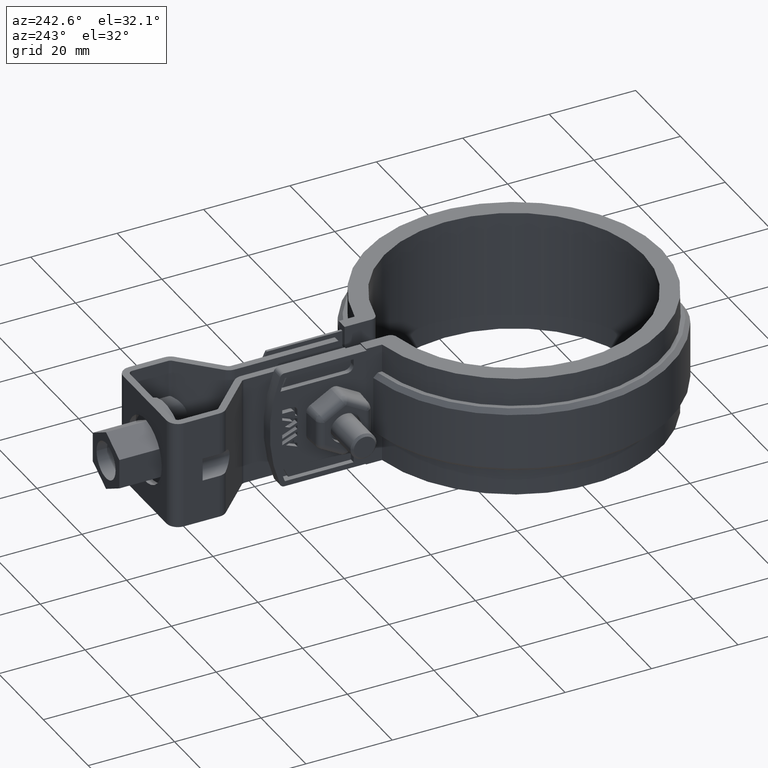
[diagram: clean part render]
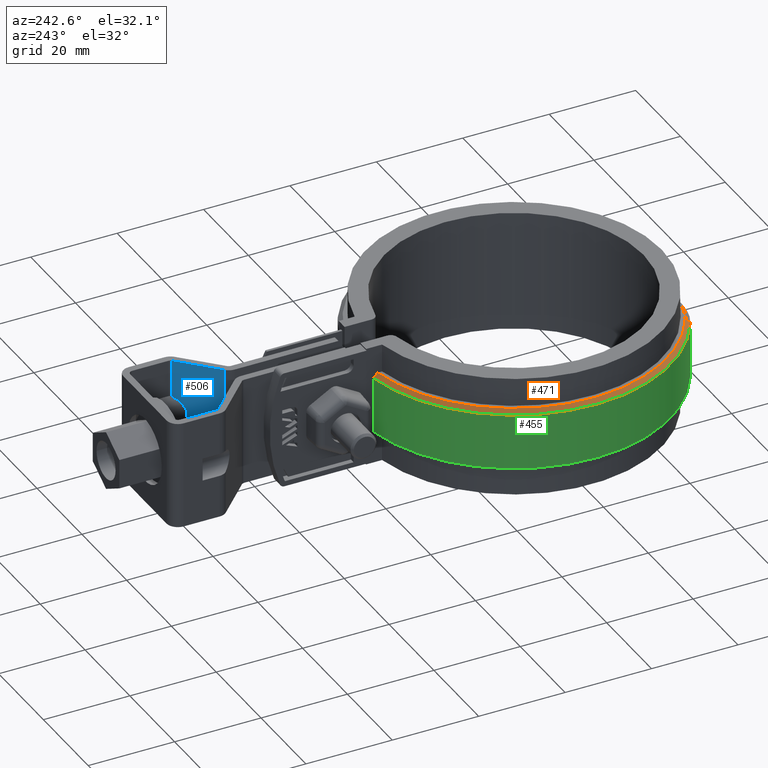
[diagram: same view with three faces highlighted in distinct colors, each labeled with its STEP entity id]
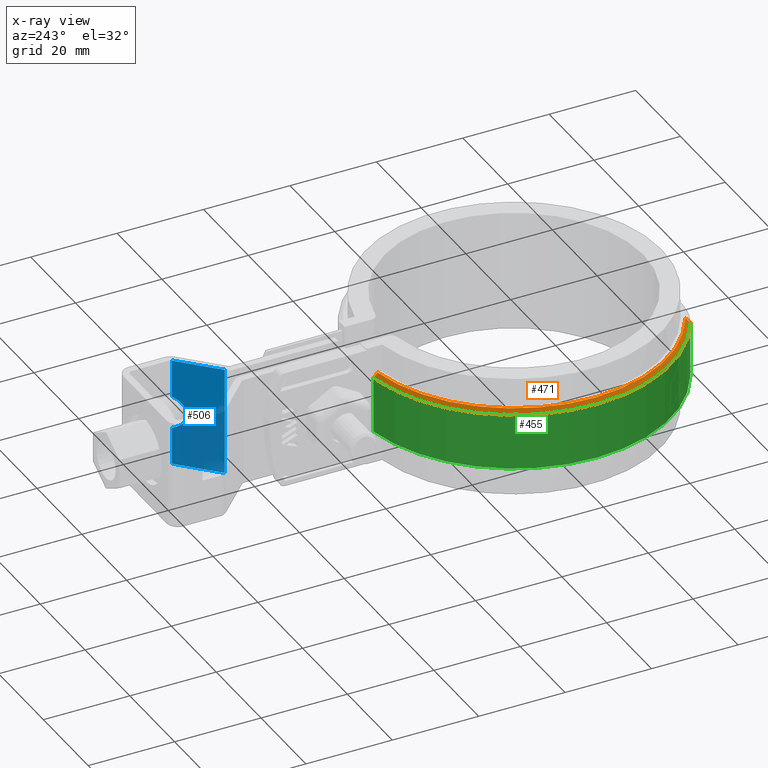
[diagram: x-ray of the same camera — body ghosted, the three highlighted faces saturated]
A machine part, auxiliary view with three faces highlighted in distinct colors.
The next image is the same camera in x-ray (body ghosted, the three faces saturated) — at least one of them is partly hidden behind the body in this view.
Their STEP definitions:

[orange] entity #471 — the highlighted conical surface has half-angle 45 deg.
#471 = ADVANCED_FACE( '', ( #935 ), #936, .T. );
#935 = FACE_OUTER_BOUND( '', #2015, .T. );
#936 = CONICAL_SURFACE( '', #2016, 35.2450000000000, 0.785398163397450 );
#2015 = EDGE_LOOP( '', ( #4493, #4494, #4495, #4496 ) );
#2016 = AXIS2_PLACEMENT_3D( '', #4497, #4498, #4499 );
#4493 = ORIENTED_EDGE( '', *, *, #6737, .F. );
#4494 = ORIENTED_EDGE( '', *, *, #6912, .F. );
#4495 = ORIENTED_EDGE( '', *, *, #6933, .F. );
#4496 = ORIENTED_EDGE( '', *, *, #6935, .F. );
#4497 = CARTESIAN_POINT( '', ( 8.67361737988404E-016, 0.000000000000000, -5.00000000000000 ) );
#4498 = DIRECTION( '', ( 0.000000000000000, 0.000000000000000, -1.00000000000000 ) );
#4499 = DIRECTION( '', ( -1.00000000000000, 0.000000000000000, 0.000000000000000 ) );
#6737 = EDGE_CURVE( '', #7781, #7783, #7784, .T. );
#6912 = EDGE_CURVE( '', #8083, #7781, #8085, .T. );
#6933 = EDGE_CURVE( '', #8111, #8083, #8112, .T. );
#6935 = EDGE_CURVE( '', #7783, #8111, #8114, .F. );
#7781 = VERTEX_POINT( '', #10363 );
#7783 = VERTEX_POINT( '', #10366 );
#7784 = B_SPLINE_CURVE_WITH_KNOTS( '', 3, ( #10367, #10368, #10369, #10370 ), .UNSPECIFIED., .F., .F., ( 4, 4 ), ( 9.81307786677359E-018, 0.00142478149816513 ), .UNSPECIFIED. );
#8083 = VERTEX_POINT( '', #11698 );
#8085 = CIRCLE( '', #11701, 36.2450000000000 );
#8111 = VERTEX_POINT( '', #11740 );
#8112 = LINE( '', #11741, #11742 );
#8114 = CIRCLE( '', #11744, 35.2450000000000 );
#10363 = CARTESIAN_POINT( '', ( -6.09999999999999, 35.7280005737797, -6.00000000000000 ) );
#10366 = CARTESIAN_POINT( '', ( -6.09999999999999, 34.7131102755141, -5.00000000000000 ) );
#10367 = CARTESIAN_POINT( '', ( -6.09999999999999, 35.7280005737797, -6.00000000000000 ) );
#10368 = CARTESIAN_POINT( '', ( -6.09999999999999, 35.3897727736946, -5.66659668821881 ) );
#10369 = CARTESIAN_POINT( '', ( -6.09999999999999, 35.0514779785923, -5.33326132474473 ) );
#10370 = CARTESIAN_POINT( '', ( -6.09999999999999, 34.7131102755141, -5.00000000000000 ) );
#11698 = CARTESIAN_POINT( '', ( -17.0871064701963, -31.9645243586726, -6.00000000000000 ) );
#11701 = AXIS2_PLACEMENT_3D( '', #13653, #13654, #13655 );
#11740 = CARTESIAN_POINT( '', ( -16.6156729905385, -31.0826227347611, -5.00000000000000 ) );
#11741 = CARTESIAN_POINT( '', ( -16.6156729905385, -31.0826227347611, -5.00000000000000 ) );
#11742 = VECTOR( '', #13690, 1000.00000000000 );
#11744 = AXIS2_PLACEMENT_3D( '', #13694, #13695, #13696 );
#13653 = CARTESIAN_POINT( '', ( 8.67361737988404E-016, 0.000000000000000, -6.00000000000000 ) );
#13654 = DIRECTION( '', ( 0.000000000000000, 0.000000000000000, -1.00000000000000 ) );
#13655 = DIRECTION( '', ( -1.00000000000000, 0.000000000000000, 0.000000000000000 ) );
#13690 = DIRECTION( '', ( -0.333353810344388, -0.623598618607257, -0.707106781186546 ) );
#13694 = CARTESIAN_POINT( '', ( 8.67361737988404E-016, 0.000000000000000, -5.00000000000000 ) );
#13695 = DIRECTION( '', ( 0.000000000000000, 0.000000000000000, -1.00000000000000 ) );
#13696 = DIRECTION( '', ( -1.00000000000000, 0.000000000000000, 0.000000000000000 ) );

[blue] entity #506 — the highlighted planar face has unit normal (-0.6983, 0.7158, -0).
#506 = ADVANCED_FACE( '', ( #1007 ), #1008, .T. );
#1007 = FACE_OUTER_BOUND( '', #2265, .T. );
#1008 = PLANE( '', #2266 );
#2265 = EDGE_LOOP( '', ( #4946, #4947, #4948, #4949, #4950, #4951 ) );
#2266 = AXIS2_PLACEMENT_3D( '', #4952, #4953, #4954 );
#4946 = ORIENTED_EDGE( '', *, *, #6960, .F. );
#4947 = ORIENTED_EDGE( '', *, *, #7013, .T. );
#4948 = ORIENTED_EDGE( '', *, *, #6996, .T. );
#4949 = ORIENTED_EDGE( '', *, *, #7012, .T. );
#4950 = ORIENTED_EDGE( '', *, *, #7014, .T. );
#4951 = ORIENTED_EDGE( '', *, *, #7015, .F. );
#4952 = CARTESIAN_POINT( '', ( 10.3483238354871, 73.7815349866463, -8.22131251965175E-009 ) );
#4953 = DIRECTION( '', ( -0.698323835530563, 0.715781964518444, -4.53049167009169E-011 ) );
#4954 = DIRECTION( '', ( 0.715781964518444, 0.698323835530563, -4.47500647805803E-011 ) );
#6960 = EDGE_CURVE( '', #8149, #8151, #8152, .T. );
#6996 = EDGE_CURVE( '', #8220, #8217, #8221, .T. );
#7012 = EDGE_CURVE( '', #8217, #8242, #8244, .T. );
#7013 = EDGE_CURVE( '', #8149, #8220, #8245, .T. );
#7014 = EDGE_CURVE( '', #8242, #8246, #8247, .T. );
#7015 = EDGE_CURVE( '', #8151, #8246, #8248, .F. );
#8149 = VERTEX_POINT( '', #11804 );
#8151 = VERTEX_POINT( '', #11806 );
#8152 = LINE( '', #11807, #11808 );
#8217 = VERTEX_POINT( '', #11906 );
#8220 = VERTEX_POINT( '', #11914 );
#8221 = ELLIPSE( '', #11915, 5.93756228945901, 4.24999999999996 );
#8242 = VERTEX_POINT( '', #11953 );
#8244 = LINE( '', #11955, #11956 );
#8245 = LINE( '', #11957, #11958 );
#8246 = VERTEX_POINT( '', #11959 );
#8247 = LINE( '', #11960, #11961 );
#8248 = LINE( '', #11962, #11963 );
#11804 = CARTESIAN_POINT( '', ( 10.3483238354871, 73.7815349866463, -8.22131251965175E-009 ) );
#11806 = CARTESIAN_POINT( '', ( 2.18435802757801, 65.8166906643183, -7.71091523965595E-009 ) );
#11807 = CARTESIAN_POINT( '', ( 10.3483238354871, 73.7815349866463, -8.22131251965175E-009 ) );
#11808 = VECTOR( '', #13733, 1000.00000000000 );
#11906 = CARTESIAN_POINT( '', ( 10.3483238354807, 73.7815349856082, -16.3008062076333 ) );
#11914 = CARTESIAN_POINT( '', ( 10.3483238354837, 73.7815349860923, -8.69919380880933 ) );
#11915 = AXIS2_PLACEMENT_3D( '', #13796, #13797, #13798 );
#11953 = CARTESIAN_POINT( '', ( 10.3483238354772, 73.7815349850543, -25.0000000082213 ) );
#11955 = CARTESIAN_POINT( '', ( 10.3483238354871, 73.7815349866463, -8.22131251965175E-009 ) );
#11956 = VECTOR( '', #13817, 1000.00000000000 );
#11957 = CARTESIAN_POINT( '', ( 10.3483238354871, 73.7815349866463, -8.22131251965175E-009 ) );
#11958 = VECTOR( '', #13818, 1000.00000000000 );
#11959 = CARTESIAN_POINT( '', ( 2.18435802756817, 65.8166906627263, -25.0000000077109 ) );
#11960 = CARTESIAN_POINT( '', ( 10.3483238354772, 73.7815349850543, -25.0000000082213 ) );
#11961 = VECTOR( '', #13819, 1000.00000000000 );
#11962 = CARTESIAN_POINT( '', ( 2.18435802757801, 65.8166906643183, -7.71091523965595E-009 ) );
#11963 = VECTOR( '', #13820, 1000.00000000000 );
#13733 = DIRECTION( '', ( -0.715781964518441, -0.698323835530566, 4.47500647805805E-011 ) );
#13796 = CARTESIAN_POINT( '', ( 12.2499999999514, 75.6368287190511, -12.5000000083402 ) );
#13797 = DIRECTION( '', ( 0.698323835530563, -0.715781964518444, 4.53049167009169E-011 ) );
#13798 = DIRECTION( '', ( 0.715781964518444, 0.698323835530563, -4.47500647805803E-011 ) );
#13817 = DIRECTION( '', ( -3.93786081994497E-013, -6.36784791563427E-011, -1.00000000000000 ) );
#13818 = DIRECTION( '', ( -3.93786081994497E-013, -6.36784791563427E-011, -1.00000000000000 ) );
#13819 = DIRECTION( '', ( -0.715781964518441, -0.698323835530566, 4.47500647805805E-011 ) );
#13820 = DIRECTION( '', ( 3.93724851676806E-013, 6.36784194194502E-011, 1.00000000000000 ) );

[green] entity #455 — the highlighted cylindrical surface (partial cylindrical patch) has radius 36.245 mm, axis along (0, 0, -1).
#455 = ADVANCED_FACE( '', ( #903 ), #904, .T. );
#903 = FACE_OUTER_BOUND( '', #1983, .T. );
#904 = CYLINDRICAL_SURFACE( '', #1984, 36.2450000000000 );
#1983 = EDGE_LOOP( '', ( #4371, #4372, #4373, #4374 ) );
#1984 = AXIS2_PLACEMENT_3D( '', #4375, #4376, #4377 );
#4371 = ORIENTED_EDGE( '', *, *, #6736, .F. );
#4372 = ORIENTED_EDGE( '', *, *, #6910, .T. );
#4373 = ORIENTED_EDGE( '', *, *, #6911, .T. );
#4374 = ORIENTED_EDGE( '', *, *, #6912, .T. );
#4375 = CARTESIAN_POINT( '', ( 8.67361737988404E-016, 0.000000000000000, -20.0000000000000 ) );
#4376 = DIRECTION( '', ( 0.000000000000000, 0.000000000000000, -1.00000000000000 ) );
#4377 = DIRECTION( '', ( 0.171773235086843, 0.985136516279749, 0.000000000000000 ) );
#6736 = EDGE_CURVE( '', #7779, #7781, #7782, .T. );
#6910 = EDGE_CURVE( '', #7779, #8068, #8082, .F. );
#6911 = EDGE_CURVE( '', #8068, #8083, #8084, .T. );
#6912 = EDGE_CURVE( '', #8083, #7781, #8085, .T. );
#7779 = VERTEX_POINT( '', #10358 );
#7781 = VERTEX_POINT( '', #10363 );
#7782 = LINE( '', #10364, #10365 );
#8068 = VERTEX_POINT( '', #11679 );
#8082 = CIRCLE( '', #11697, 36.2450000000000 );
#8083 = VERTEX_POINT( '', #11698 );
#8084 = LINE( '', #11699, #11700 );
#8085 = CIRCLE( '', #11701, 36.2450000000000 );
#10358 = CARTESIAN_POINT( '', ( -6.09999999999999, 35.7280005737797, -19.0000000000000 ) );
#10363 = CARTESIAN_POINT( '', ( -6.09999999999999, 35.7280005737797, -6.00000000000000 ) );
#10364 = CARTESIAN_POINT( '', ( -6.09999999999999, 35.7280005737797, -20.0000000000000 ) );
#10365 = VECTOR( '', #13449, 1000.00000000000 );
#11679 = CARTESIAN_POINT( '', ( -17.0871064701963, -31.9645243586726, -19.0000000000000 ) );
#11697 = AXIS2_PLACEMENT_3D( '', #13649, #13650, #13651 );
#11698 = CARTESIAN_POINT( '', ( -17.0871064701963, -31.9645243586726, -6.00000000000000 ) );
#11699 = CARTESIAN_POINT( '', ( -17.0871064701963, -31.9645243586726, -20.0000000000000 ) );
#11700 = VECTOR( '', #13652, 1000.00000000000 );
#11701 = AXIS2_PLACEMENT_3D( '', #13653, #13654, #13655 );
#13449 = DIRECTION( '', ( 0.000000000000000, 0.000000000000000, 1.00000000000000 ) );
#13649 = CARTESIAN_POINT( '', ( 8.67361737988404E-016, 0.000000000000000, -19.0000000000000 ) );
#13650 = DIRECTION( '', ( 0.000000000000000, 0.000000000000000, -1.00000000000000 ) );
#13651 = DIRECTION( '', ( -1.00000000000000, 0.000000000000000, 0.000000000000000 ) );
#13652 = DIRECTION( '', ( 0.000000000000000, 0.000000000000000, 1.00000000000000 ) );
#13653 = CARTESIAN_POINT( '', ( 8.67361737988404E-016, 0.000000000000000, -6.00000000000000 ) );
#13654 = DIRECTION( '', ( 0.000000000000000, 0.000000000000000, -1.00000000000000 ) );
#13655 = DIRECTION( '', ( -1.00000000000000, 0.000000000000000, 0.000000000000000 ) );